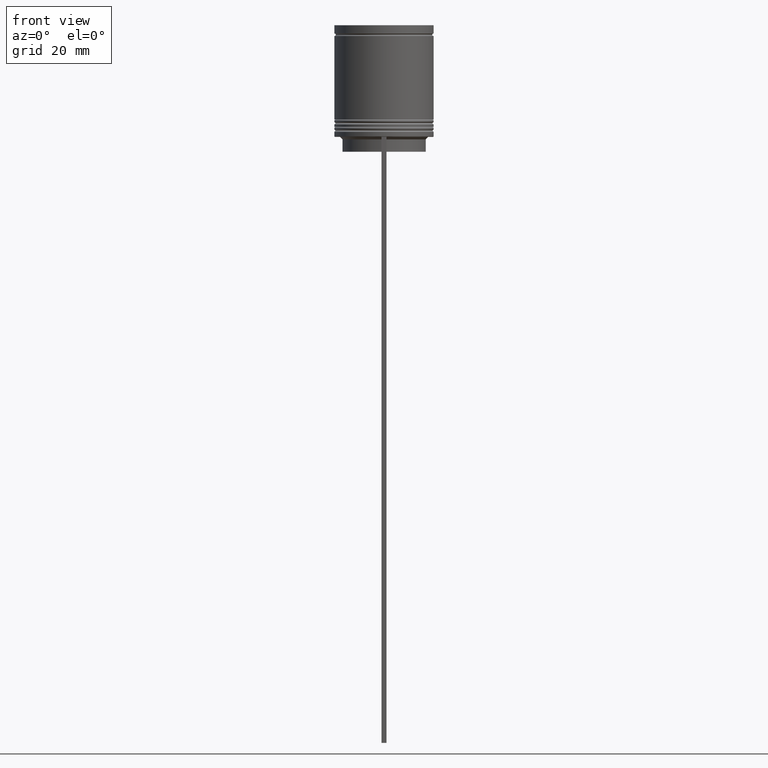
[diagram: clean part render]
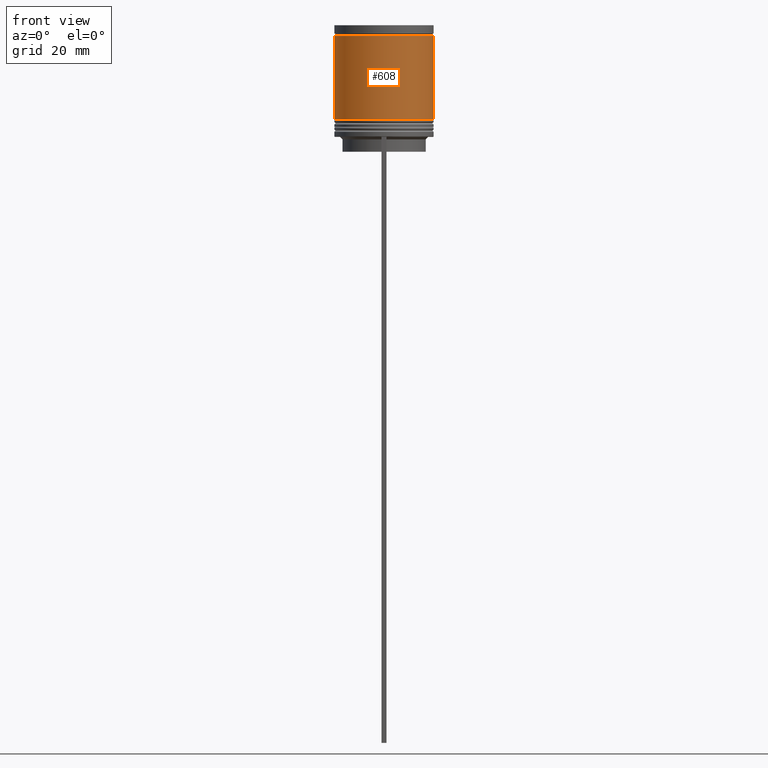
[diagram: same view with one face highlighted and labeled with its STEP entity id]
A machine part, front view. The second image highlights one B-rep face of the part: STEP entity #608.
In plain terms, the highlighted cylindrical surface (partial cylindrical patch) has radius 10 mm, axis along (-0, -0, 1).
Its self-contained STEP definition (entity closure, byte-faithful):
#40 = EDGE_CURVE ( 'NONE', #1680, #1483, #868, .T. ) ;
#145 = CARTESIAN_POINT ( 'NONE',  ( -10.00000000000000355, 1.224646799147353651E-15, -19.00000000000000000 ) ) ;
#165 = DIRECTION ( 'NONE',  ( -0.000000000000000000, -0.000000000000000000, 1.000000000000000000 ) ) ;
#185 = CARTESIAN_POINT ( 'NONE',  ( -9.999999999999996447, 1.224646799147352862E-15, -2.199999999999995293 ) ) ;
#316 = DIRECTION ( 'NONE',  ( 1.000000000000000000, 0.000000000000000000, 0.000000000000000000 ) ) ;
#327 = CARTESIAN_POINT ( 'NONE',  ( 0.000000000000000000, 0.000000000000000000, -19.00000000000000000 ) ) ;
#335 = AXIS2_PLACEMENT_3D ( 'NONE', #327, #1283, #810 ) ;
#352 = CARTESIAN_POINT ( 'NONE',  ( 10.00000000000000178, 0.000000000000000000, -19.00000000000000000 ) ) ;
#414 = EDGE_LOOP ( 'NONE', ( #1645, #630, #1417, #715 ) ) ;
#519 = EDGE_CURVE ( 'NONE', #850, #627, #929, .T. ) ;
#539 = DIRECTION ( 'NONE',  ( -0.000000000000000000, -0.000000000000000000, 1.000000000000000000 ) ) ;
#608 = ADVANCED_FACE ( 'NONE', ( #1652 ), #1318, .T. ) ;
#627 = VERTEX_POINT ( 'NONE', #185 ) ;
#630 = ORIENTED_EDGE ( 'NONE', *, *, #1000, .T. ) ;
#715 = ORIENTED_EDGE ( 'NONE', *, *, #1887, .F. ) ;
#810 = DIRECTION ( 'NONE',  ( 1.000000000000000000, 0.000000000000000000, 0.000000000000000000 ) ) ;
#850 = VERTEX_POINT ( 'NONE', #145 ) ;
#868 = LINE ( 'NONE', #1491, #1268 ) ;
#929 = LINE ( 'NONE', #1860, #1402 ) ;
#1000 = EDGE_CURVE ( 'NONE', #850, #1680, #1843, .T. ) ;
#1235 = AXIS2_PLACEMENT_3D ( 'NONE', #1960, #539, #1472 ) ;
#1268 = VECTOR ( 'NONE', #1663, 1000.000000000000000 ) ;
#1283 = DIRECTION ( 'NONE',  ( -0.000000000000000000, -0.000000000000000000, 1.000000000000000000 ) ) ;
#1318 = CYLINDRICAL_SURFACE ( 'NONE', #1235, 9.999999999999998224 ) ;
#1402 = VECTOR ( 'NONE', #2020, 1000.000000000000000 ) ;
#1417 = ORIENTED_EDGE ( 'NONE', *, *, #40, .T. ) ;
#1472 = DIRECTION ( 'NONE',  ( 1.000000000000000000, 0.000000000000000000, 0.000000000000000000 ) ) ;
#1483 = VERTEX_POINT ( 'NONE', #1600 ) ;
#1491 = CARTESIAN_POINT ( 'NONE',  ( 9.999999999999998224, 0.000000000000000000, 0.000000000000000000 ) ) ;
#1600 = CARTESIAN_POINT ( 'NONE',  ( 9.999999999999996447, 0.000000000000000000, -2.199999999999995293 ) ) ;
#1645 = ORIENTED_EDGE ( 'NONE', *, *, #519, .F. ) ;
#1652 = FACE_OUTER_BOUND ( 'NONE', #414, .T. ) ;
#1663 = DIRECTION ( 'NONE',  ( -0.000000000000000000, -0.000000000000000000, 1.000000000000000000 ) ) ;
#1680 = VERTEX_POINT ( 'NONE', #352 ) ;
#1754 = CARTESIAN_POINT ( 'NONE',  ( 0.000000000000000000, 0.000000000000000000, -2.199999999999995293 ) ) ;
#1843 = CIRCLE ( 'NONE', #335, 10.00000000000000178 ) ;
#1860 = CARTESIAN_POINT ( 'NONE',  ( -9.999999999999998224, 1.224646799147353059E-15, 0.000000000000000000 ) ) ;
#1887 = EDGE_CURVE ( 'NONE', #627, #1483, #2002, .T. ) ;
#1911 = AXIS2_PLACEMENT_3D ( 'NONE', #1754, #165, #316 ) ;
#1960 = CARTESIAN_POINT ( 'NONE',  ( 0.000000000000000000, 0.000000000000000000, 0.000000000000000000 ) ) ;
#2002 = CIRCLE ( 'NONE', #1911, 9.999999999999996447 ) ;
#2020 = DIRECTION ( 'NONE',  ( -0.000000000000000000, -0.000000000000000000, 1.000000000000000000 ) ) ;